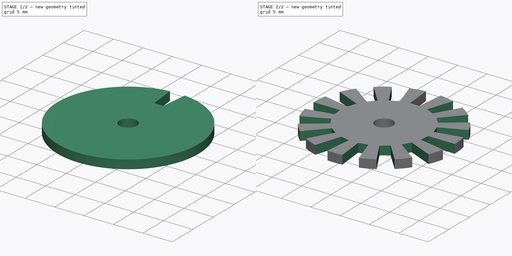
[diagram: build sequence overview — one tinted view per stage of 2, left to right]
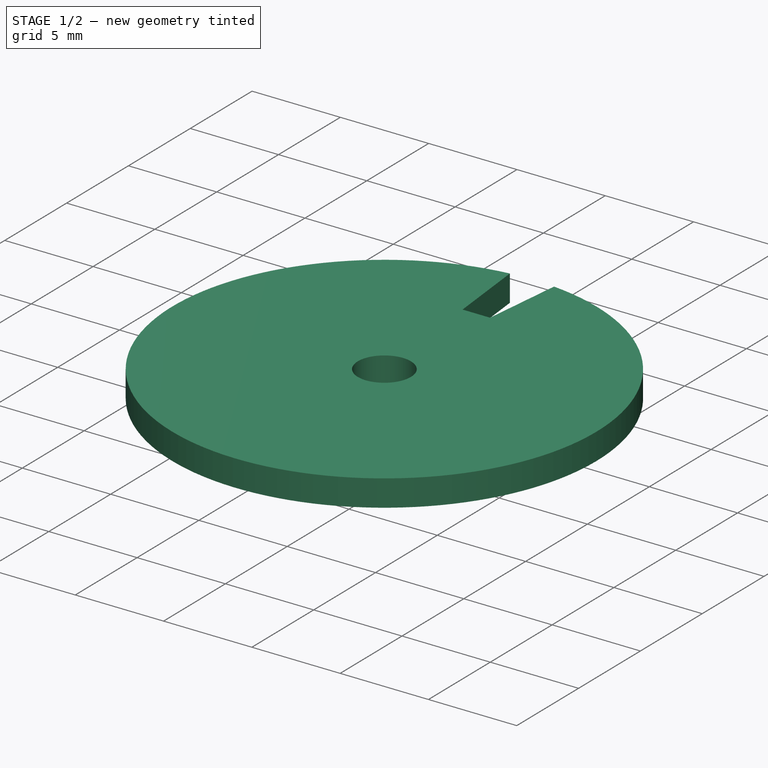
[diagram: stage 1 of 2 — iso view after this stage's code; geometry added in this stage tinted green]
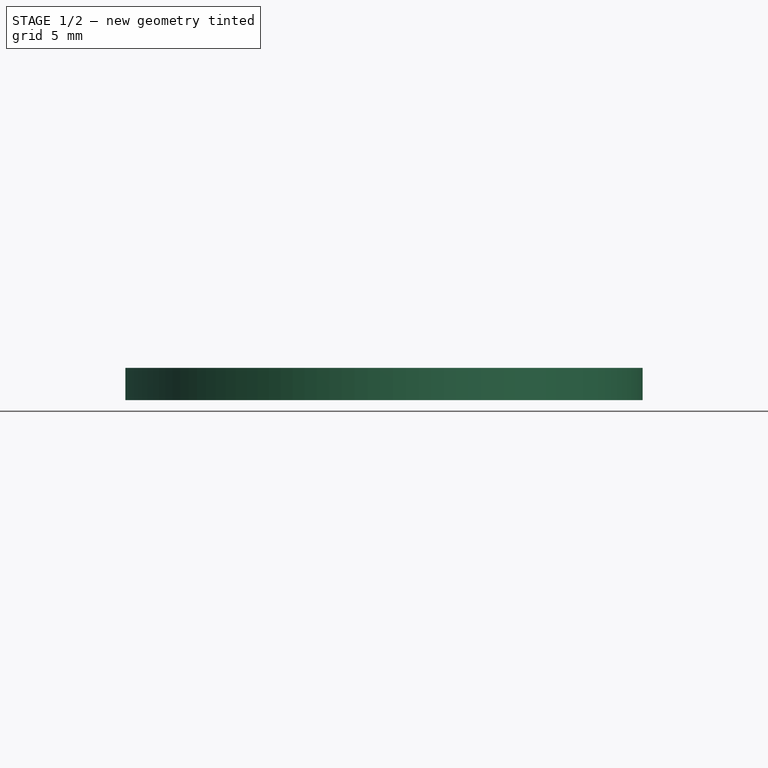
[diagram: stage 1 of 2 — front view after this stage's code; geometry added in this stage tinted green]
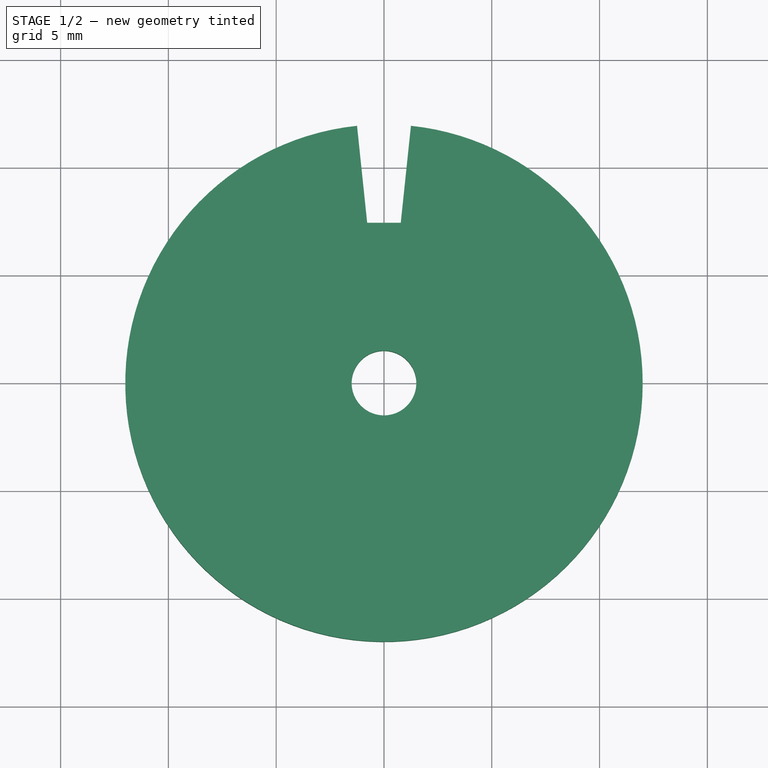
[diagram: stage 1 of 2 — top view after this stage's code; geometry added in this stage tinted green]
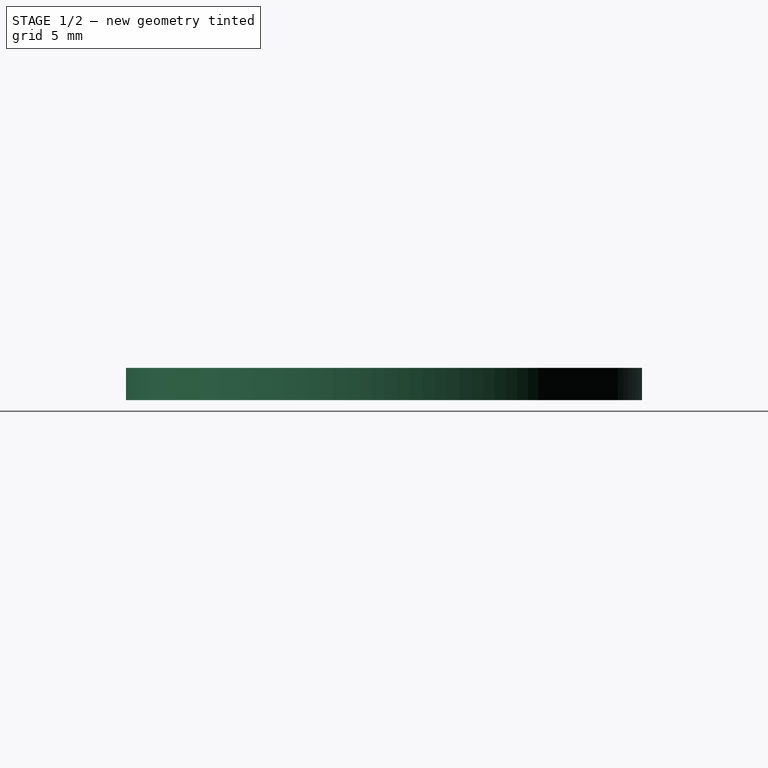
[diagram: stage 1 of 2 — right view after this stage's code; geometry added in this stage tinted green]
FCSTD DOCUMENT  (FreeCAD 0.16R6712 (Git))
Label: WindGear
License: All rights reserved
LicenseURL: http://en.wikipedia.org/wiki/All_rights_reserved
objects: Sketcher::SketchObject×2, PartDesign::Pad×1, PartDesign::Pocket×1, PartDesign::PolarPattern×1
note: 7 computed .brp shape members not serialized (recipe doc carries the construction recipe); baked Part::Feature solids carry a one-line shape summary decoded from their .brp

FEATURE [Sketcher::SketchObject] Sketch
  sketch-geometry (2):
    g0: Circle CenterX=0 CenterY=0 CenterZ=0 NormalX=0 NormalY=0 NormalZ=1 Radius=12
    g1: Circle CenterX=0 CenterY=0 CenterZ=0 NormalX=0 NormalY=0 NormalZ=1 Radius=1.5
  constraints (4):
    c: Coincident(g0,g-1)
    c: Radius(g0) = 12
    c: Coincident(g1,g-1)
    c: Radius(g1) = 1.5
FEATURE [PartDesign::Pad] Pad
  Length = 1.5
  Length2 = 100
  Sketch = -> Sketch
  Type = 0
FEATURE [Sketcher::SketchObject] Sketch001
  Placement = pos=(0,0,1.5) rot=(0,0,1;0rad)
  Support = -> Pad [Face4]
  sketch-geometry (6):
    g0: LineSegment [constr] StartX=0 StartY=0 StartZ=0 EndX=-1.25 EndY=11.9347 EndZ=0
    g1: LineSegment [constr] StartX=0 StartY=0 StartZ=0 EndX=1.25 EndY=11.9347 EndZ=0
    g2: ArcOfCircle CenterX=0 CenterY=0 CenterZ=0 NormalX=0 NormalY=0 NormalZ=1 Radius=12 StartAngle=1.46644 EndAngle=1.67515
    g3: LineSegment StartX=-0.778686 StartY=7.43472 StartZ=0 EndX=0.778686 EndY=7.43472 EndZ=0
    g4: LineSegment StartX=-1.25 StartY=11.9347 StartZ=0 EndX=-0.778686 EndY=7.43472 EndZ=0
    g5: LineSegment StartX=0.778686 StartY=7.43472 StartZ=0 EndX=1.25 EndY=11.9347 EndZ=0
  constraints (17):
    c: Coincident(g0,g-1)
    c: Coincident(g1,g-1)
    c: Distance(g1) = 12
    c: Equal(g1,g0)
    c: DistanceX(g0,g-1) = 1.25
    c: DistanceX(g-1,g1) = 1.25
    c: Coincident(g2,g-1)
    c: Coincident(g2,g0)
    c: Coincident(g2,g1)
    c: PointOnObject(g3,g0)
    c: PointOnObject(g3,g1)
    c: Horizontal(g3)
    c: DistanceY(g3,g0) = 4.5
    c: Coincident(g4,g0)
    c: Coincident(g4,g3)
    c: Coincident(g5,g3)
    c: Coincident(g5,g1)
FEATURE [PartDesign::Pocket] Pocket
  Length = 5
  Sketch = -> Sketch001
  Type = 0
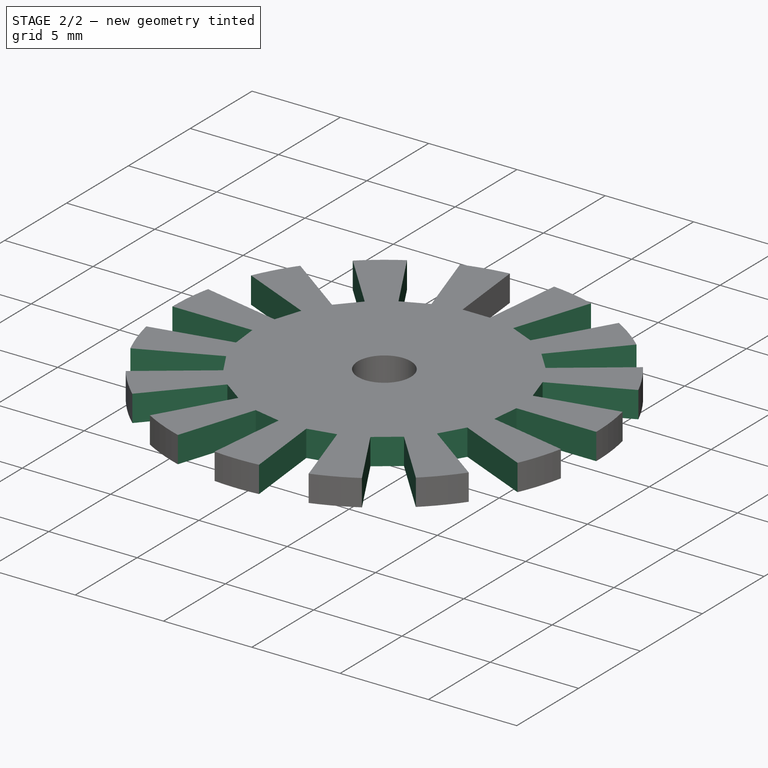
[diagram: stage 2 of 2 — iso view after this stage's code; geometry added in this stage tinted green]
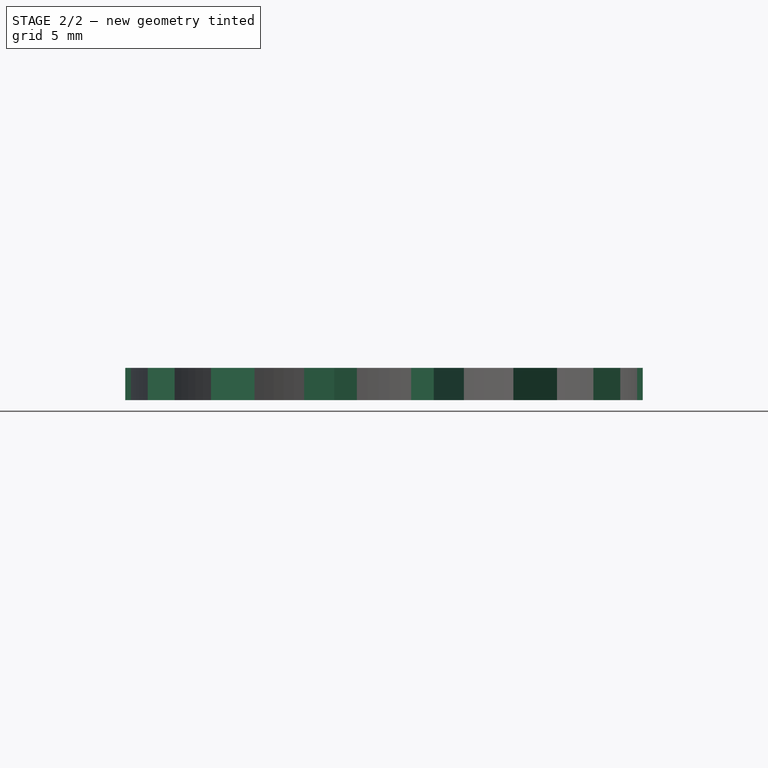
[diagram: stage 2 of 2 — front view after this stage's code; geometry added in this stage tinted green]
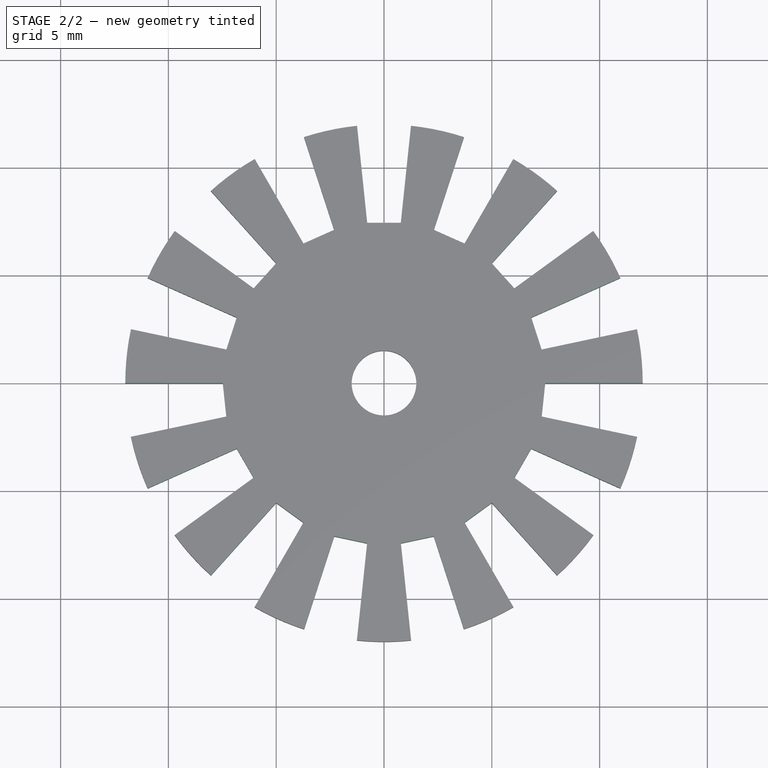
[diagram: stage 2 of 2 — top view after this stage's code; geometry added in this stage tinted green]
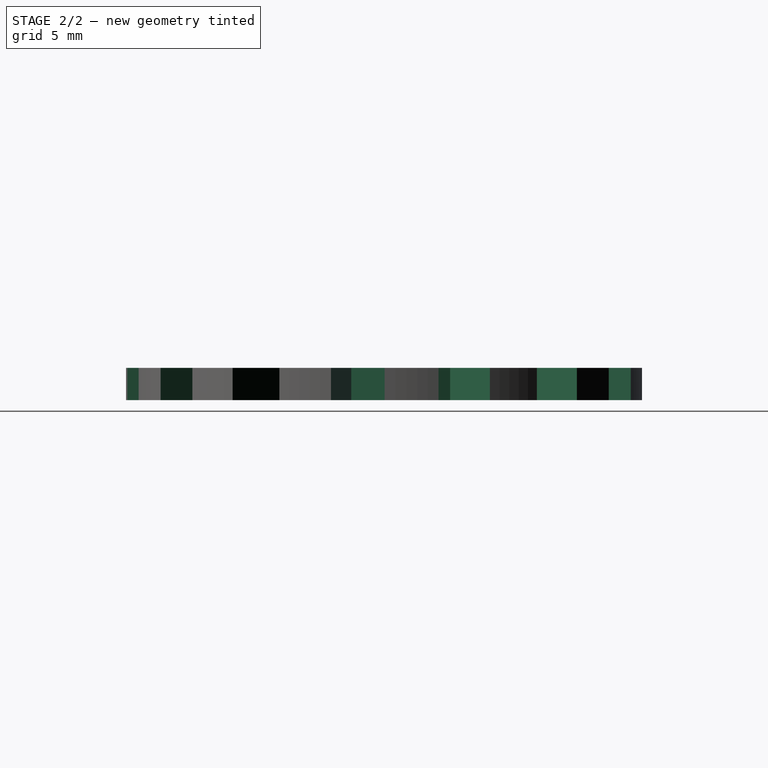
[diagram: stage 2 of 2 — right view after this stage's code; geometry added in this stage tinted green]
FEATURE [PartDesign::PolarPattern] PolarPattern
  Angle = 360
  Axis = -> Sketch001 [N_Axis]
  Occurrences = 15
  Originals = -> [Pocket]
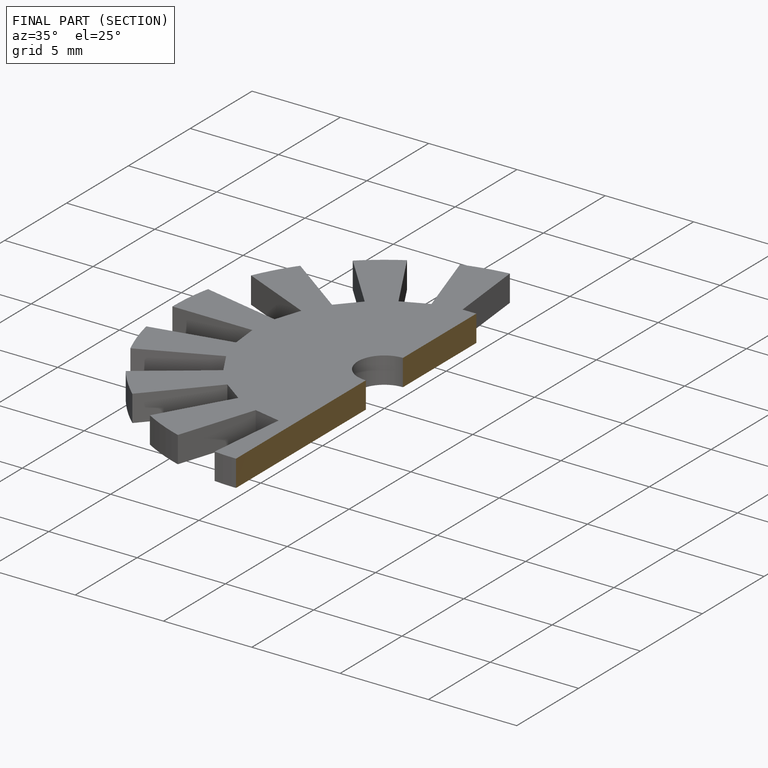
[diagram: finished part — half-section view (interior)]
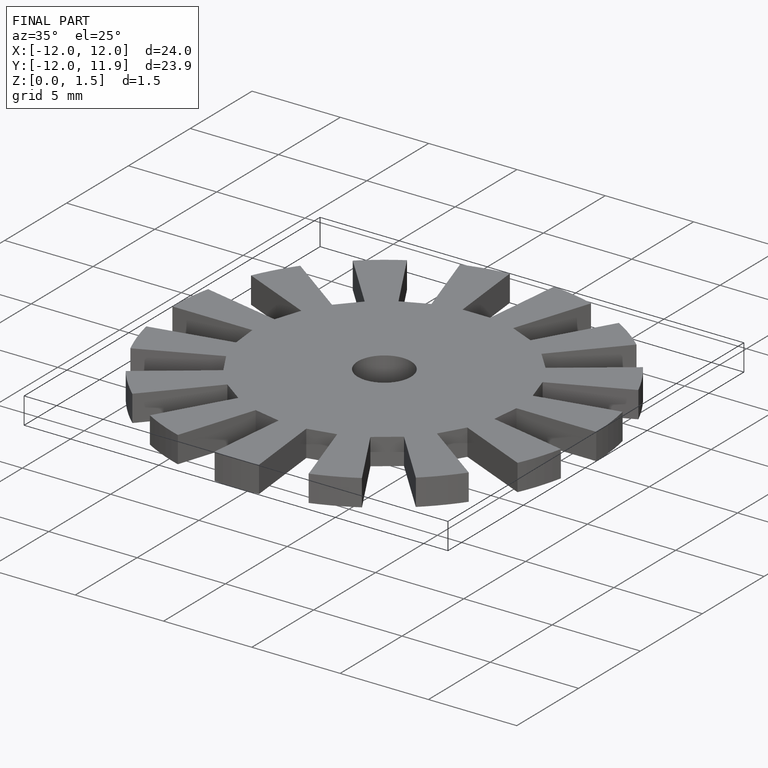
[diagram: finished part — iso view with bounding-box wireframe]
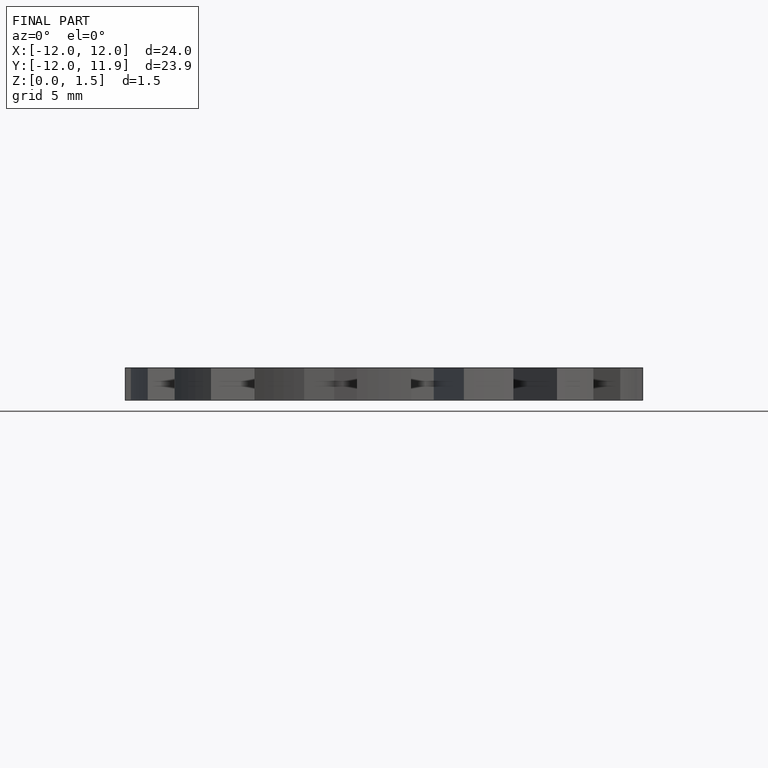
[diagram: finished part — front view with bounding-box wireframe]
